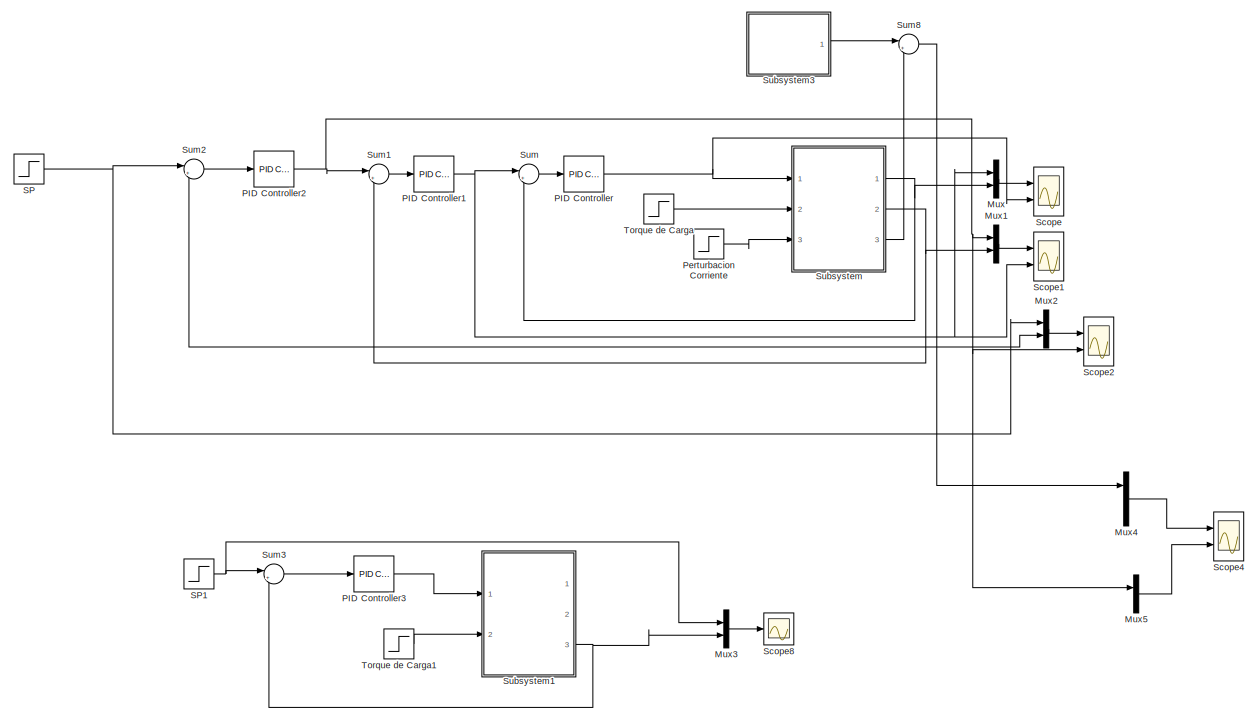
[diagram: root canvas - part 1/2, full width, top band]
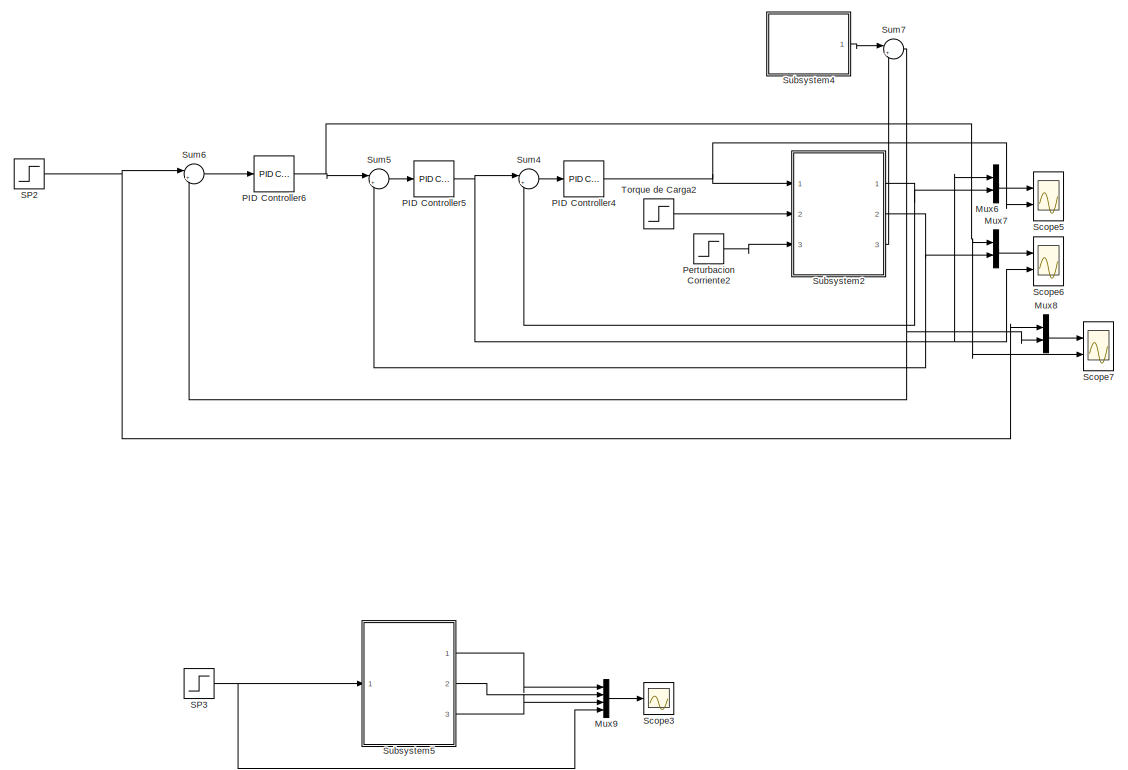
[diagram: root canvas - part 2/2, full width, bottom band]
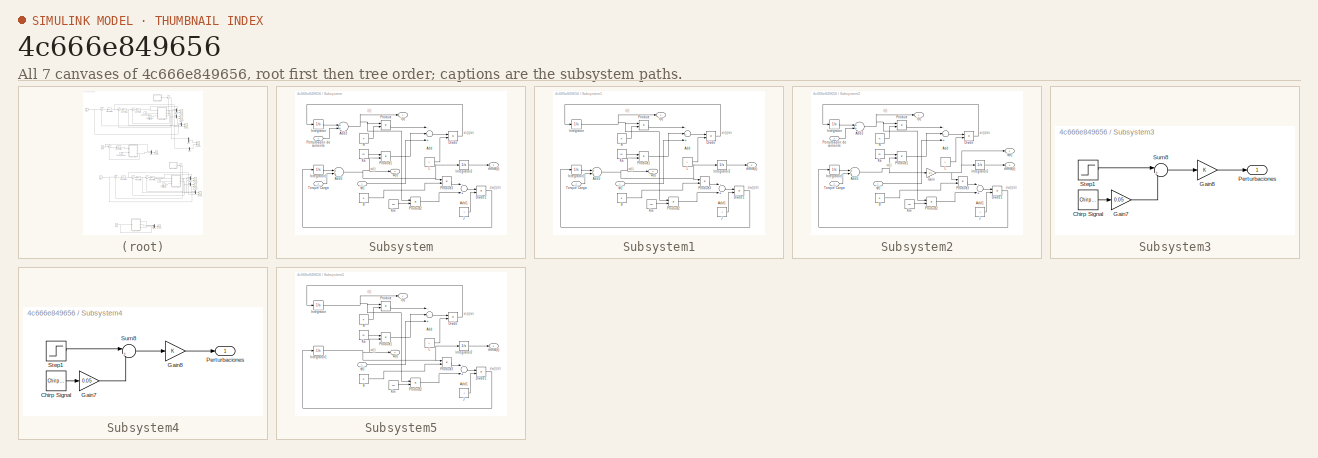
[diagram: thumbnail index - all 7 canvases of the model, root first then tree order]
MODEL slx_4c666e849656
KIND model
CONFIG AbsTol = auto
CONFIG EnableMultiTasking = off
CONFIG FixedStep = auto
CONFIG MaxStep = auto
CONFIG MinStep = auto
CONFIG RelTol = 1e-3
CONFIG SampleTimeConstraint = Unconstrained
CONFIG Solver = VariableStepAuto
CONFIG SolverName = VariableStepAuto
CONFIG StartTime = 0.0
CONFIG StopTime = 3
BLOCK [Mux] Mux
  DisplayOption = bar
  Inputs = 2
  Ports = [2, 1]
BLOCK [Mux] Mux1
  DisplayOption = bar
  Inputs = 2
  Ports = [2, 1]
BLOCK [Mux] Mux2
  DisplayOption = bar
  Inputs = 2
  Ports = [2, 1]
BLOCK [Mux] Mux3
  DisplayOption = bar
  Inputs = 2
  Ports = [2, 1]
BLOCK [Mux] Mux4
  DisplayOption = bar
  Inputs = 3
  Ports = [3, 1]
BLOCK [Mux] Mux5
  DisplayOption = bar
  Inputs = 2
  Ports = [2, 1]
BLOCK [Mux] Mux6
  DisplayOption = bar
  Inputs = 2
  Ports = [2, 1]
BLOCK [Mux] Mux7
  DisplayOption = bar
  Inputs = 2
  Ports = [2, 1]
BLOCK [Mux] Mux8
  DisplayOption = bar
  Inputs = 2
  Ports = [2, 1]
BLOCK [Mux] Mux9
  DisplayOption = bar
  Ports = [4, 1]
BLOCK [Reference] PID Controller  REF=simulink/Continuous/PID Controller
  Ports = [1, 1]
  SourceBlock = simulink/Continuous/PID Controller
  SourceProductBaseCode = SL
  SourceProductName = Simulink
  SourceType = PID 1dof
BLOCK [Reference] PID Controller1  REF=simulink/Continuous/PID Controller
  Ports = [1, 1]
  SourceBlock = simulink/Continuous/PID Controller
  SourceProductBaseCode = SL
  SourceProductName = Simulink
  SourceType = PID 1dof
BLOCK [Reference] PID Controller2  REF=simulink/Continuous/PID Controller
  Ports = [1, 1]
  SourceBlock = simulink/Continuous/PID Controller
  SourceProductBaseCode = SL
  SourceProductName = Simulink
  SourceType = PID 1dof
BLOCK [Reference] PID Controller3  REF=simulink/Continuous/PID Controller
  Ports = [1, 1]
  SourceBlock = simulink/Continuous/PID Controller
  SourceProductBaseCode = SL
  SourceProductName = Simulink
  SourceType = PID 1dof
BLOCK [Reference] PID Controller4  REF=simulink/Continuous/PID Controller
  Ports = [1, 1]
  SourceBlock = simulink/Continuous/PID Controller
  SourceProductBaseCode = SL
  SourceProductName = Simulink
  SourceType = PID 1dof
BLOCK [Reference] PID Controller5  REF=simulink/Continuous/PID Controller
  Ports = [1, 1]
  SourceBlock = simulink/Continuous/PID Controller
  SourceProductBaseCode = SL
  SourceProductName = Simulink
  SourceType = PID 1dof
BLOCK [Reference] PID Controller6  REF=simulink/Continuous/PID Controller
  Ports = [1, 1]
  SourceBlock = simulink/Continuous/PID Controller
  SourceProductBaseCode = SL
  SourceProductName = Simulink
  SourceType = PID 1dof
BLOCK [Step] Perturbacion Corriente
  After = 2
  SampleTime = 0
  Time = 15
BLOCK [Step] Perturbacion Corriente2
  After = 2
  SampleTime = 0
  Time = 15
BLOCK [Step] SP
  After = 0.5
  SampleTime = 0
  Time = 2
BLOCK [Step] SP1
  After = 0.588
  SampleTime = 0
  Time = 0.5
BLOCK [Step] SP2
  After = 0.5
  SampleTime = 0
  Time = 2
BLOCK [Step] SP3
  After = 12
  SampleTime = 0
  Time = 0.5
BLOCK [Scope] Scope
  Floating = off
  NumInputPorts = 2
  Ports = [2]
  ScopeSpecificationString = Simulink.scopes.TimeScopeBlockCfg('CurrentConfiguration', extmgr.ConfigurationSet(extmgr.Configuration('Core','General UI',true),extmgr.Configuration('Core','Source UI',true),extmgr.Configuration('Sources','WiredSimulink',true),extmgr.Configuration('Visuals','Time Domain',true,'SerializedDisplays',{struct('MinYLimReal','-3.12301','MaxYLimReal','14.01425','YLabelReal','','MinYLimMag','0.00000','Max...<+1952ch>
BLOCK [Scope] Scope1
  Floating = off
  NumInputPorts = 2
  Ports = [2]
  ScopeSpecificationString = Simulink.scopes.TimeScopeBlockCfg('CurrentConfiguration', extmgr.ConfigurationSet(extmgr.Configuration('Core','General UI',true),extmgr.Configuration('Core','Source UI',true),extmgr.Configuration('Sources','WiredSimulink',true,'DataLoggingVariableName','ScopeData1'),extmgr.Configuration('Visuals','Time Domain',true,'SerializedDisplays',{struct('MinYLimReal','-0.30348','MaxYLimReal','1.48262','YLab...<+2023ch>
BLOCK [Scope] Scope2
  Floating = off
  NumInputPorts = 2
  Ports = [2]
  ScopeSpecificationString = Simulink.scopes.TimeScopeBlockCfg('CurrentConfiguration', extmgr.ConfigurationSet(extmgr.Configuration('Core','General UI',true),extmgr.Configuration('Core','Source UI',true),extmgr.Configuration('Sources','WiredSimulink',true,'DataLoggingVariableName','ScopeData2'),extmgr.Configuration('Visuals','Time Domain',true,'SerializedDisplays',{struct('MinYLimReal','-0.24995','MaxYLimReal','1.74958','YLab...<+2001ch>
BLOCK [Scope] Scope3
  Floating = off
  NumInputPorts = 1
  Ports = [1]
  ScopeSpecificationString = Simulink.scopes.TimeScopeBlockCfg('CurrentConfiguration', extmgr.ConfigurationSet(extmgr.Configuration('Core','General UI',true,'FigureColor',[1 1 1]),extmgr.Configuration('Core','Source UI',true),extmgr.Configuration('Sources','WiredSimulink',true,'DataLoggingVariableName','ScopeData1'),extmgr.Configuration('Visuals','Time Domain',true,'SerializedDisplays',{struct('MinYLimReal','-1.5','MaxYLimRea...<+2408ch>
BLOCK [Scope] Scope4
  Floating = off
  NumInputPorts = 2
  Ports = [2]
  ScopeSpecificationString = Simulink.scopes.TimeScopeBlockCfg('CurrentConfiguration', extmgr.ConfigurationSet(extmgr.Configuration('Core','General UI',true),extmgr.Configuration('Core','Source UI',true),extmgr.Configuration('Sources','WiredSimulink',true,'DataLoggingVariableName','ScopeData4'),extmgr.Configuration('Visuals','Time Domain',true,'SerializedDisplays',{struct('MinYLimReal','-0.12742','MaxYLimReal','0.64672','YLab...<+2361ch>
BLOCK [Scope] Scope5
  Floating = off
  NumInputPorts = 2
  Ports = [2]
  ScopeSpecificationString = Simulink.scopes.TimeScopeBlockCfg('CurrentConfiguration', extmgr.ConfigurationSet(extmgr.Configuration('Core','General UI',true),extmgr.Configuration('Core','Source UI',true),extmgr.Configuration('Sources','WiredSimulink',true,'DataLoggingVariableName','ScopeData1'),extmgr.Configuration('Visuals','Time Domain',true,'SerializedDisplays',{struct('MinYLimReal','-3.12301','MaxYLimReal','14.01425','YLa...<+1991ch>
BLOCK [Scope] Scope6
  Floating = off
  NumInputPorts = 2
  Ports = [2]
  ScopeSpecificationString = Simulink.scopes.TimeScopeBlockCfg('CurrentConfiguration', extmgr.ConfigurationSet(extmgr.Configuration('Core','General UI',true),extmgr.Configuration('Core','Source UI',true),extmgr.Configuration('Sources','WiredSimulink',true,'DataLoggingVariableName','ScopeData2'),extmgr.Configuration('Visuals','Time Domain',true,'SerializedDisplays',{struct('MinYLimReal','-0.30348','MaxYLimReal','1.48262','YLab...<+2023ch>
BLOCK [Scope] Scope7
  Floating = off
  NumInputPorts = 2
  Ports = [2]
  ScopeSpecificationString = Simulink.scopes.TimeScopeBlockCfg('CurrentConfiguration', extmgr.ConfigurationSet(extmgr.Configuration('Core','General UI',true),extmgr.Configuration('Core','Source UI',true),extmgr.Configuration('Sources','WiredSimulink',true,'DataLoggingVariableName','ScopeData3'),extmgr.Configuration('Visuals','Time Domain',true,'SerializedDisplays',{struct('MinYLimReal','-0.25016','MaxYLimReal','1.74967','YLab...<+2001ch>
BLOCK [Scope] Scope8
  Floating = off
  NumInputPorts = 1
  Ports = [1]
  ScopeSpecificationString = Simulink.scopes.TimeScopeBlockCfg('CurrentConfiguration', extmgr.ConfigurationSet(extmgr.Configuration('Core','General UI',true,'FigureColor',[1 1 1]),extmgr.Configuration('Core','Source UI',true),extmgr.Configuration('Sources','WiredSimulink',true,'DataLoggingVariableName','ScopeData1'),extmgr.Configuration('Visuals','Time Domain',true,'SerializedDisplays',{struct('MinYLimReal','-0.08369','MaxYLi...<+1829ch>
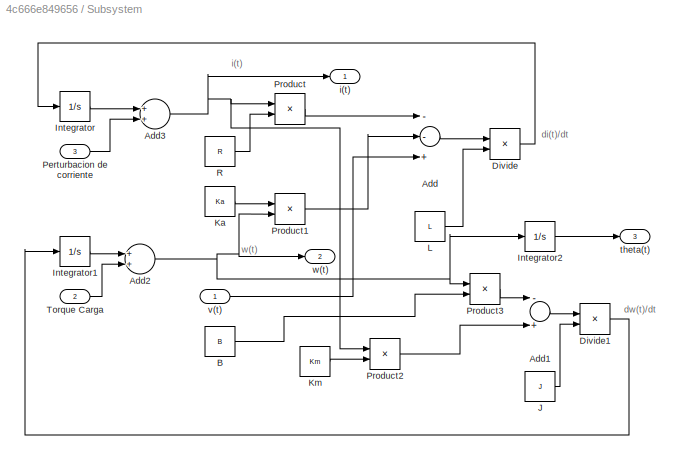
BLOCK [SubSystem] Subsystem
  Ports = [3, 3]
  RequestExecContextInheritance = off
BLOCK [Sum] Subsystem/Add
  InputSameDT = off
  Inputs = --+
  OutDataTypeStr = Inherit: Inherit via internal rule
  Ports = [3, 1]
  SaturateOnIntegerOverflow = off
BLOCK [Sum] Subsystem/Add1
  InputSameDT = off
  Inputs = -+
  OutDataTypeStr = Inherit: Inherit via internal rule
  Ports = [2, 1]
  SaturateOnIntegerOverflow = off
BLOCK [Sum] Subsystem/Add2
  InputSameDT = off
  OutDataTypeStr = Inherit: Inherit via internal rule
  Ports = [2, 1]
  SaturateOnIntegerOverflow = off
BLOCK [Sum] Subsystem/Add3
  InputSameDT = off
  OutDataTypeStr = Inherit: Inherit via internal rule
  Ports = [2, 1]
  SaturateOnIntegerOverflow = off
BLOCK [Constant] Subsystem/B
  Value = B
BLOCK [Product] Subsystem/Divide
  InputSameDT = off
  Inputs = */
  OutDataTypeStr = Inherit: Inherit via internal rule
  Ports = [2, 1]
  RndMeth = Floor
  SaturateOnIntegerOverflow = off
BLOCK [Product] Subsystem/Divide1
  InputSameDT = off
  Inputs = */
  OutDataTypeStr = Inherit: Inherit via internal rule
  Ports = [2, 1]
  RndMeth = Floor
  SaturateOnIntegerOverflow = off
BLOCK [Integrator] Subsystem/Integrator
  Ports = [1, 1]
BLOCK [Integrator] Subsystem/Integrator1
  Ports = [1, 1]
BLOCK [Integrator] Subsystem/Integrator2
  Ports = [1, 1]
BLOCK [Constant] Subsystem/J
  Value = J
BLOCK [Constant] Subsystem/Ka
  Value = Ka
BLOCK [Constant] Subsystem/Km
  Value = Km
BLOCK [Constant] Subsystem/L
  Value = L
BLOCK [Inport] Subsystem/Perturbacion de corriente
  IconDisplay = Port number
  Port = 3
BLOCK [Product] Subsystem/Product
  InputSameDT = off
  OutDataTypeStr = Inherit: Inherit via internal rule
  Ports = [2, 1]
  RndMeth = Floor
  SaturateOnIntegerOverflow = off
BLOCK [Product] Subsystem/Product1
  InputSameDT = off
  OutDataTypeStr = Inherit: Inherit via internal rule
  Ports = [2, 1]
  RndMeth = Floor
  SaturateOnIntegerOverflow = off
BLOCK [Product] Subsystem/Product2
  InputSameDT = off
  OutDataTypeStr = Inherit: Inherit via internal rule
  Ports = [2, 1]
  RndMeth = Floor
  SaturateOnIntegerOverflow = off
BLOCK [Product] Subsystem/Product3
  InputSameDT = off
  OutDataTypeStr = Inherit: Inherit via internal rule
  Ports = [2, 1]
  RndMeth = Floor
  SaturateOnIntegerOverflow = off
BLOCK [Constant] Subsystem/R
  Value = R
BLOCK [Inport] Subsystem/Torque Carga
  IconDisplay = Port number
  Port = 2
BLOCK [Outport] Subsystem/i(t)
  IconDisplay = Port number
BLOCK [Outport] Subsystem/theta(t)
  IconDisplay = Port number
  Port = 3
BLOCK [Inport] Subsystem/v(t)
  IconDisplay = Port number
BLOCK [Outport] Subsystem/w(t)
  IconDisplay = Port number
  Port = 2
BLOCK [SubSystem] Subsystem1
  Ports = [2, 3]
  RequestExecContextInheritance = off
BLOCK [Sum] Subsystem1/Add
  InputSameDT = off
  Inputs = --+
  OutDataTypeStr = Inherit: Inherit via internal rule
  Ports = [3, 1]
  SaturateOnIntegerOverflow = off
BLOCK [Sum] Subsystem1/Add1
  InputSameDT = off
  Inputs = -+
  OutDataTypeStr = Inherit: Inherit via internal rule
  Ports = [2, 1]
  SaturateOnIntegerOverflow = off
BLOCK [Sum] Subsystem1/Add2
  InputSameDT = off
  OutDataTypeStr = Inherit: Inherit via internal rule
  Ports = [2, 1]
  SaturateOnIntegerOverflow = off
BLOCK [Constant] Subsystem1/B
  Value = B
BLOCK [Product] Subsystem1/Divide
  InputSameDT = off
  Inputs = */
  OutDataTypeStr = Inherit: Inherit via internal rule
  Ports = [2, 1]
  RndMeth = Floor
  SaturateOnIntegerOverflow = off
BLOCK [Product] Subsystem1/Divide1
  InputSameDT = off
  Inputs = */
  OutDataTypeStr = Inherit: Inherit via internal rule
  Ports = [2, 1]
  RndMeth = Floor
  SaturateOnIntegerOverflow = off
BLOCK [Integrator] Subsystem1/Integrator
  Ports = [1, 1]
BLOCK [Integrator] Subsystem1/Integrator1
  Ports = [1, 1]
BLOCK [Integrator] Subsystem1/Integrator2
  Ports = [1, 1]
BLOCK [Constant] Subsystem1/J
  Value = J
BLOCK [Constant] Subsystem1/Ka
  Value = Ka
BLOCK [Constant] Subsystem1/Km
  Value = Km
BLOCK [Constant] Subsystem1/L
  Value = L
BLOCK [Product] Subsystem1/Product
  InputSameDT = off
  OutDataTypeStr = Inherit: Inherit via internal rule
  Ports = [2, 1]
  RndMeth = Floor
  SaturateOnIntegerOverflow = off
BLOCK [Product] Subsystem1/Product1
  InputSameDT = off
  OutDataTypeStr = Inherit: Inherit via internal rule
  Ports = [2, 1]
  RndMeth = Floor
  SaturateOnIntegerOverflow = off
BLOCK [Product] Subsystem1/Product2
  InputSameDT = off
  OutDataTypeStr = Inherit: Inherit via internal rule
  Ports = [2, 1]
  RndMeth = Floor
  SaturateOnIntegerOverflow = off
BLOCK [Product] Subsystem1/Product3
  InputSameDT = off
  OutDataTypeStr = Inherit: Inherit via internal rule
  Ports = [2, 1]
  RndMeth = Floor
  SaturateOnIntegerOverflow = off
BLOCK [Constant] Subsystem1/R
  Value = R
BLOCK [Inport] Subsystem1/Torque Carga
  IconDisplay = Port number
  Port = 2
BLOCK [Outport] Subsystem1/i(t)
  IconDisplay = Port number
BLOCK [Outport] Subsystem1/theta(t)
  IconDisplay = Port number
  Port = 3
BLOCK [Inport] Subsystem1/v(t)
  IconDisplay = Port number
BLOCK [Outport] Subsystem1/w(t)
  IconDisplay = Port number
  Port = 2
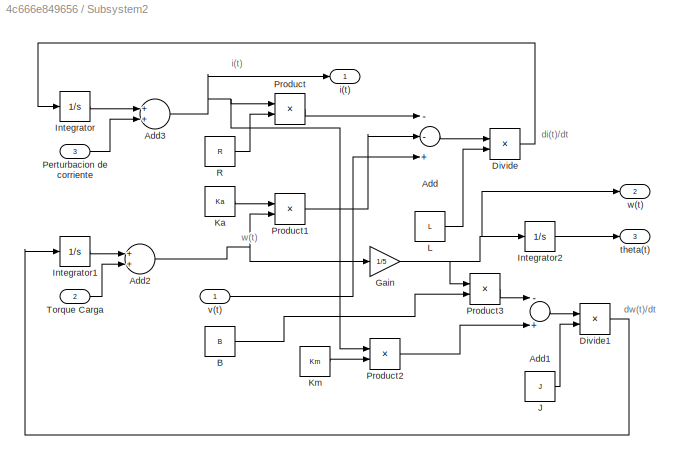
BLOCK [SubSystem] Subsystem2
  Ports = [3, 3]
  RequestExecContextInheritance = off
BLOCK [Sum] Subsystem2/Add
  InputSameDT = off
  Inputs = --+
  OutDataTypeStr = Inherit: Inherit via internal rule
  Ports = [3, 1]
  SaturateOnIntegerOverflow = off
BLOCK [Sum] Subsystem2/Add1
  InputSameDT = off
  Inputs = -+
  OutDataTypeStr = Inherit: Inherit via internal rule
  Ports = [2, 1]
  SaturateOnIntegerOverflow = off
BLOCK [Sum] Subsystem2/Add2
  InputSameDT = off
  OutDataTypeStr = Inherit: Inherit via internal rule
  Ports = [2, 1]
  SaturateOnIntegerOverflow = off
BLOCK [Sum] Subsystem2/Add3
  InputSameDT = off
  OutDataTypeStr = Inherit: Inherit via internal rule
  Ports = [2, 1]
  SaturateOnIntegerOverflow = off
BLOCK [Constant] Subsystem2/B
  Value = B
BLOCK [Product] Subsystem2/Divide
  InputSameDT = off
  Inputs = */
  OutDataTypeStr = Inherit: Inherit via internal rule
  Ports = [2, 1]
  RndMeth = Floor
  SaturateOnIntegerOverflow = off
BLOCK [Product] Subsystem2/Divide1
  InputSameDT = off
  Inputs = */
  OutDataTypeStr = Inherit: Inherit via internal rule
  Ports = [2, 1]
  RndMeth = Floor
  SaturateOnIntegerOverflow = off
BLOCK [Gain] Subsystem2/Gain
  Gain = 1/5
  OutDataTypeStr = Inherit: Inherit via internal rule
  ParamDataTypeStr = Inherit: Inherit via internal rule
  SaturateOnIntegerOverflow = off
BLOCK [Integrator] Subsystem2/Integrator
  Ports = [1, 1]
BLOCK [Integrator] Subsystem2/Integrator1
  Ports = [1, 1]
BLOCK [Integrator] Subsystem2/Integrator2
  Ports = [1, 1]
BLOCK [Constant] Subsystem2/J
  Value = J
BLOCK [Constant] Subsystem2/Ka
  Value = Ka
BLOCK [Constant] Subsystem2/Km
  Value = Km
BLOCK [Constant] Subsystem2/L
  Value = L
BLOCK [Inport] Subsystem2/Perturbacion de corriente
  IconDisplay = Port number
  Port = 3
BLOCK [Product] Subsystem2/Product
  InputSameDT = off
  OutDataTypeStr = Inherit: Inherit via internal rule
  Ports = [2, 1]
  RndMeth = Floor
  SaturateOnIntegerOverflow = off
BLOCK [Product] Subsystem2/Product1
  InputSameDT = off
  OutDataTypeStr = Inherit: Inherit via internal rule
  Ports = [2, 1]
  RndMeth = Floor
  SaturateOnIntegerOverflow = off
BLOCK [Product] Subsystem2/Product2
  InputSameDT = off
  OutDataTypeStr = Inherit: Inherit via internal rule
  Ports = [2, 1]
  RndMeth = Floor
  SaturateOnIntegerOverflow = off
BLOCK [Product] Subsystem2/Product3
  InputSameDT = off
  OutDataTypeStr = Inherit: Inherit via internal rule
  Ports = [2, 1]
  RndMeth = Floor
  SaturateOnIntegerOverflow = off
BLOCK [Constant] Subsystem2/R
  Value = R
BLOCK [Inport] Subsystem2/Torque Carga
  IconDisplay = Port number
  Port = 2
BLOCK [Outport] Subsystem2/i(t)
  IconDisplay = Port number
BLOCK [Outport] Subsystem2/theta(t)
  IconDisplay = Port number
  Port = 3
BLOCK [Inport] Subsystem2/v(t)
  IconDisplay = Port number
BLOCK [Outport] Subsystem2/w(t)
  IconDisplay = Port number
  Port = 2
BLOCK [SubSystem] Subsystem3
  Ports = [0, 1]
  RequestExecContextInheritance = off
BLOCK [Reference] Subsystem3/Chirp Signal  REF=simulink/Sources/Chirp Signal
  Ports = [0, 1]
  SourceBlock = simulink/Sources/Chirp Signal
  SourceProductBaseCode = SL
  SourceProductName = Simulink
  SourceType = chirp
BLOCK [Gain] Subsystem3/Gain7
  Gain = 0.05
  OutDataTypeStr = Inherit: Inherit via internal rule
  ParamDataTypeStr = Inherit: Inherit via internal rule
  SaturateOnIntegerOverflow = off
BLOCK [Gain] Subsystem3/Gain8
  OutDataTypeStr = Inherit: Inherit via internal rule
  ParamDataTypeStr = Inherit: Inherit via internal rule
  SaturateOnIntegerOverflow = off
BLOCK [Outport] Subsystem3/Perturbaciones 
  IconDisplay = Port number
BLOCK [Step] Subsystem3/Step1
  SampleTime = 0
  Time = 40
BLOCK [Sum] Subsystem3/Sum8
  IconShape = round
  InputSameDT = off
  Inputs = |++
  OutDataTypeStr = Inherit: Inherit via internal rule
  Ports = [2, 1]
  SaturateOnIntegerOverflow = off
BLOCK [SubSystem] Subsystem4
  Ports = [0, 1]
  RequestExecContextInheritance = off
BLOCK [Reference] Subsystem4/Chirp Signal  REF=simulink/Sources/Chirp Signal
  Ports = [0, 1]
  SourceBlock = simulink/Sources/Chirp Signal
  SourceProductBaseCode = SL
  SourceProductName = Simulink
  SourceType = chirp
BLOCK [Gain] Subsystem4/Gain7
  Gain = 0.05
  OutDataTypeStr = Inherit: Inherit via internal rule
  ParamDataTypeStr = Inherit: Inherit via internal rule
  SaturateOnIntegerOverflow = off
BLOCK [Gain] Subsystem4/Gain8
  OutDataTypeStr = Inherit: Inherit via internal rule
  ParamDataTypeStr = Inherit: Inherit via internal rule
  SaturateOnIntegerOverflow = off
BLOCK [Outport] Subsystem4/Perturbaciones 
  IconDisplay = Port number
BLOCK [Step] Subsystem4/Step1
  SampleTime = 0
  Time = 40
BLOCK [Sum] Subsystem4/Sum8
  IconShape = round
  InputSameDT = off
  Inputs = |++
  OutDataTypeStr = Inherit: Inherit via internal rule
  Ports = [2, 1]
  SaturateOnIntegerOverflow = off
BLOCK [SubSystem] Subsystem5
  Ports = [1, 3]
  RequestExecContextInheritance = off
BLOCK [Sum] Subsystem5/Add
  InputSameDT = off
  Inputs = --+
  OutDataTypeStr = Inherit: Inherit via internal rule
  Ports = [3, 1]
  SaturateOnIntegerOverflow = off
BLOCK [Sum] Subsystem5/Add1
  InputSameDT = off
  Inputs = -+
  OutDataTypeStr = Inherit: Inherit via internal rule
  Ports = [2, 1]
  SaturateOnIntegerOverflow = off
BLOCK [Constant] Subsystem5/B
  Value = B
BLOCK [Product] Subsystem5/Divide
  InputSameDT = off
  Inputs = */
  OutDataTypeStr = Inherit: Inherit via internal rule
  Ports = [2, 1]
  RndMeth = Floor
  SaturateOnIntegerOverflow = off
BLOCK [Product] Subsystem5/Divide1
  InputSameDT = off
  Inputs = */
  OutDataTypeStr = Inherit: Inherit via internal rule
  Ports = [2, 1]
  RndMeth = Floor
  SaturateOnIntegerOverflow = off
BLOCK [Integrator] Subsystem5/Integrator
  Ports = [1, 1]
BLOCK [Integrator] Subsystem5/Integrator1
  Ports = [1, 1]
BLOCK [Integrator] Subsystem5/Integrator2
  Ports = [1, 1]
BLOCK [Constant] Subsystem5/J
  Value = J
BLOCK [Constant] Subsystem5/Ka
  Value = Ka
BLOCK [Constant] Subsystem5/Km
  Value = Km
BLOCK [Constant] Subsystem5/L
  Value = L
BLOCK [Product] Subsystem5/Product
  InputSameDT = off
  OutDataTypeStr = Inherit: Inherit via internal rule
  Ports = [2, 1]
  RndMeth = Floor
  SaturateOnIntegerOverflow = off
BLOCK [Product] Subsystem5/Product1
  InputSameDT = off
  OutDataTypeStr = Inherit: Inherit via internal rule
  Ports = [2, 1]
  RndMeth = Floor
  SaturateOnIntegerOverflow = off
BLOCK [Product] Subsystem5/Product2
  InputSameDT = off
  OutDataTypeStr = Inherit: Inherit via internal rule
  Ports = [2, 1]
  RndMeth = Floor
  SaturateOnIntegerOverflow = off
BLOCK [Product] Subsystem5/Product3
  InputSameDT = off
  OutDataTypeStr = Inherit: Inherit via internal rule
  Ports = [2, 1]
  RndMeth = Floor
  SaturateOnIntegerOverflow = off
BLOCK [Constant] Subsystem5/R
  Value = R
BLOCK [Outport] Subsystem5/i(t)
  IconDisplay = Port number
BLOCK [Outport] Subsystem5/theta(t)
  IconDisplay = Port number
  Port = 3
BLOCK [Inport] Subsystem5/v(t)
  IconDisplay = Port number
BLOCK [Outport] Subsystem5/w(t)
  IconDisplay = Port number
  Port = 2
BLOCK [Sum] Sum
  IconShape = round
  InputSameDT = off
  Inputs = |+-
  OutDataTypeStr = Inherit: Inherit via internal rule
  Ports = [2, 1]
  SaturateOnIntegerOverflow = off
BLOCK [Sum] Sum1
  IconShape = round
  InputSameDT = off
  Inputs = |+-
  OutDataTypeStr = Inherit: Inherit via internal rule
  Ports = [2, 1]
  SaturateOnIntegerOverflow = off
BLOCK [Sum] Sum2
  IconShape = round
  InputSameDT = off
  Inputs = |+-
  OutDataTypeStr = Inherit: Inherit via internal rule
  Ports = [2, 1]
  SaturateOnIntegerOverflow = off
BLOCK [Sum] Sum3
  IconShape = round
  InputSameDT = off
  Inputs = |+-
  OutDataTypeStr = Inherit: Inherit via internal rule
  Ports = [2, 1]
  SaturateOnIntegerOverflow = off
BLOCK [Sum] Sum4
  IconShape = round
  InputSameDT = off
  Inputs = |+-
  OutDataTypeStr = Inherit: Inherit via internal rule
  Ports = [2, 1]
  SaturateOnIntegerOverflow = off
BLOCK [Sum] Sum5
  IconShape = round
  InputSameDT = off
  Inputs = |+-
  OutDataTypeStr = Inherit: Inherit via internal rule
  Ports = [2, 1]
  SaturateOnIntegerOverflow = off
BLOCK [Sum] Sum6
  IconShape = round
  InputSameDT = off
  Inputs = |+-
  OutDataTypeStr = Inherit: Inherit via internal rule
  Ports = [2, 1]
  SaturateOnIntegerOverflow = off
BLOCK [Sum] Sum7
  IconShape = round
  InputSameDT = off
  Inputs = |++
  OutDataTypeStr = Inherit: Inherit via internal rule
  Ports = [2, 1]
  SaturateOnIntegerOverflow = off
BLOCK [Sum] Sum8
  IconShape = round
  InputSameDT = off
  Inputs = |++
  OutDataTypeStr = Inherit: Inherit via internal rule
  Ports = [2, 1]
  SaturateOnIntegerOverflow = off
BLOCK [Step] Torque de Carga
  After = 0.5*J
  SampleTime = 0
  Time = 10
BLOCK [Step] Torque de Carga1
  After = 0.5
  SampleTime = 0
  Time = 10
BLOCK [Step] Torque de Carga2
  After = 0.9*J
  SampleTime = 0
  Time = 10
ANNOTATION Subsystem: di(t)/dt
ANNOTATION Subsystem: dw(t)/dt
ANNOTATION Subsystem: i(t)
ANNOTATION Subsystem: w(t)
ANNOTATION Subsystem1: di(t)/dt
ANNOTATION Subsystem1: dw(t)/dt
ANNOTATION Subsystem1: i(t)
ANNOTATION Subsystem1: w(t)
ANNOTATION Subsystem2: di(t)/dt
ANNOTATION Subsystem2: dw(t)/dt
ANNOTATION Subsystem2: i(t)
ANNOTATION Subsystem2: w(t)
ANNOTATION Subsystem5: di(t)/dt
ANNOTATION Subsystem5: dw(t)/dt
ANNOTATION Subsystem5: i(t)
ANNOTATION Subsystem5: w(t)
LINE Mux1:1 -> Scope1:1
LINE Mux2:1 -> Scope2:1
LINE Mux3:1 -> Scope8:1
LINE Mux4:1 -> Scope4:1
LINE Mux5:1 -> Scope4:2
LINE Mux6:1 -> Scope5:1
LINE Mux7:1 -> Scope6:1
LINE Mux8:1 -> Scope7:1
LINE Mux9:1 -> Scope3:1
LINE Mux:1 -> Scope:1
NET PID Controller1:1 -> Mux:1, Scope1:2, Sum:1
NET PID Controller2:1 -> Mux1:1, Mux5:1, Scope2:2, Sum1:1
LINE PID Controller3:1 -> Subsystem1:1
NET PID Controller4:1 -> Scope5:2, Subsystem2:1
NET PID Controller5:1 -> Mux6:1, Scope6:2, Sum4:1
NET PID Controller6:1 -> Mux7:1, Scope7:2, Sum5:1
NET PID Controller:1 -> Scope:2, Subsystem:1
LINE Perturbacion Corriente2:1 -> Subsystem2:3
LINE Perturbacion Corriente:1 -> Subsystem:3
NET SP1:1 -> Mux3:1, Sum3:1
NET SP2:1 -> Mux8:1, Sum6:1
NET SP3:1 -> Mux9:4, Subsystem5:1
NET SP:1 -> Mux2:1, Sum2:1
LINE Subsystem/Add1:1 -> Subsystem/Divide1:1
NET Subsystem/Add2:1 -> Subsystem/Integrator2:1, Subsystem/Product1:2, Subsystem/Product3:1, Subsystem/w(t):1
NET Subsystem/Add3:1 -> Subsystem/Product2:1, Subsystem/Product:1, Subsystem/i(t):1
LINE Subsystem/Add:1 -> Subsystem/Divide:1
LINE Subsystem/B:1 -> Subsystem/Product3:2
LINE Subsystem/Divide1:1 -> Subsystem/Integrator1:1
LINE Subsystem/Divide:1 -> Subsystem/Integrator:1
LINE Subsystem/Integrator1:1 -> Subsystem/Add2:1
LINE Subsystem/Integrator2:1 -> Subsystem/theta(t):1
LINE Subsystem/Integrator:1 -> Subsystem/Add3:1
LINE Subsystem/J:1 -> Subsystem/Divide1:2
LINE Subsystem/Ka:1 -> Subsystem/Product1:1
LINE Subsystem/Km:1 -> Subsystem/Product2:2
LINE Subsystem/L:1 -> Subsystem/Divide:2
LINE Subsystem/Perturbacion de corriente:1 -> Subsystem/Add3:2
LINE Subsystem/Product1:1 -> Subsystem/Add:2
LINE Subsystem/Product2:1 -> Subsystem/Add1:2
LINE Subsystem/Product3:1 -> Subsystem/Add1:1
LINE Subsystem/Product:1 -> Subsystem/Add:1
LINE Subsystem/R:1 -> Subsystem/Product:2
LINE Subsystem/Torque Carga:1 -> Subsystem/Add2:2
LINE Subsystem/v(t):1 -> Subsystem/Add:3
LINE Subsystem1/Add1:1 -> Subsystem1/Divide1:1
NET Subsystem1/Add2:1 -> Subsystem1/Integrator2:1, Subsystem1/Product1:2, Subsystem1/Product3:1, Subsystem1/w(t):1
LINE Subsystem1/Add:1 -> Subsystem1/Divide:1
LINE Subsystem1/B:1 -> Subsystem1/Product3:2
LINE Subsystem1/Divide1:1 -> Subsystem1/Integrator1:1
LINE Subsystem1/Divide:1 -> Subsystem1/Integrator:1
LINE Subsystem1/Integrator1:1 -> Subsystem1/Add2:1
LINE Subsystem1/Integrator2:1 -> Subsystem1/theta(t):1
NET Subsystem1/Integrator:1 -> Subsystem1/Product2:1, Subsystem1/Product:1, Subsystem1/i(t):1
LINE Subsystem1/J:1 -> Subsystem1/Divide1:2
LINE Subsystem1/Ka:1 -> Subsystem1/Product1:1
LINE Subsystem1/Km:1 -> Subsystem1/Product2:2
LINE Subsystem1/L:1 -> Subsystem1/Divide:2
LINE Subsystem1/Product1:1 -> Subsystem1/Add:2
LINE Subsystem1/Product2:1 -> Subsystem1/Add1:2
LINE Subsystem1/Product3:1 -> Subsystem1/Add1:1
LINE Subsystem1/Product:1 -> Subsystem1/Add:1
LINE Subsystem1/R:1 -> Subsystem1/Product:2
LINE Subsystem1/Torque Carga:1 -> Subsystem1/Add2:2
LINE Subsystem1/v(t):1 -> Subsystem1/Add:3
NET Subsystem1:3 -> Mux3:2, Sum3:2
LINE Subsystem2/Add1:1 -> Subsystem2/Divide1:1
NET Subsystem2/Add2:1 -> Subsystem2/Gain:1, Subsystem2/Product1:2
NET Subsystem2/Add3:1 -> Subsystem2/Product2:1, Subsystem2/Product:1, Subsystem2/i(t):1
LINE Subsystem2/Add:1 -> Subsystem2/Divide:1
LINE Subsystem2/B:1 -> Subsystem2/Product3:2
LINE Subsystem2/Divide1:1 -> Subsystem2/Integrator1:1
LINE Subsystem2/Divide:1 -> Subsystem2/Integrator:1
NET Subsystem2/Gain:1 -> Subsystem2/Integrator2:1, Subsystem2/Product3:1, Subsystem2/w(t):1
LINE Subsystem2/Integrator1:1 -> Subsystem2/Add2:1
LINE Subsystem2/Integrator2:1 -> Subsystem2/theta(t):1
LINE Subsystem2/Integrator:1 -> Subsystem2/Add3:1
LINE Subsystem2/J:1 -> Subsystem2/Divide1:2
LINE Subsystem2/Ka:1 -> Subsystem2/Product1:1
LINE Subsystem2/Km:1 -> Subsystem2/Product2:2
LINE Subsystem2/L:1 -> Subsystem2/Divide:2
LINE Subsystem2/Perturbacion de corriente:1 -> Subsystem2/Add3:2
LINE Subsystem2/Product1:1 -> Subsystem2/Add:2
LINE Subsystem2/Product2:1 -> Subsystem2/Add1:2
LINE Subsystem2/Product3:1 -> Subsystem2/Add1:1
LINE Subsystem2/Product:1 -> Subsystem2/Add:1
LINE Subsystem2/R:1 -> Subsystem2/Product:2
LINE Subsystem2/Torque Carga:1 -> Subsystem2/Add2:2
LINE Subsystem2/v(t):1 -> Subsystem2/Add:3
NET Subsystem2:1 -> Mux6:2, Sum4:2
NET Subsystem2:2 -> Mux7:2, Sum5:2
LINE Subsystem2:3 -> Sum7:2
LINE Subsystem3/Chirp Signal:1 -> Subsystem3/Gain7:1
LINE Subsystem3/Gain7:1 -> Subsystem3/Sum8:2
LINE Subsystem3/Gain8:1 -> Subsystem3/Perturbaciones :1
LINE Subsystem3/Step1:1 -> Subsystem3/Sum8:1
LINE Subsystem3/Sum8:1 -> Subsystem3/Gain8:1
LINE Subsystem3:1 -> Sum8:1
LINE Subsystem4/Chirp Signal:1 -> Subsystem4/Gain7:1
LINE Subsystem4/Gain7:1 -> Subsystem4/Sum8:2
LINE Subsystem4/Gain8:1 -> Subsystem4/Perturbaciones :1
LINE Subsystem4/Step1:1 -> Subsystem4/Sum8:1
LINE Subsystem4/Sum8:1 -> Subsystem4/Gain8:1
LINE Subsystem4:1 -> Sum7:1
LINE Subsystem5/Add1:1 -> Subsystem5/Divide1:1
LINE Subsystem5/Add:1 -> Subsystem5/Divide:1
LINE Subsystem5/B:1 -> Subsystem5/Product3:2
LINE Subsystem5/Divide1:1 -> Subsystem5/Integrator1:1
LINE Subsystem5/Divide:1 -> Subsystem5/Integrator:1
NET Subsystem5/Integrator1:1 -> Subsystem5/Integrator2:1, Subsystem5/Product1:2, Subsystem5/Product3:1, Subsystem5/w(t):1
LINE Subsystem5/Integrator2:1 -> Subsystem5/theta(t):1
NET Subsystem5/Integrator:1 -> Subsystem5/Product2:1, Subsystem5/Product:1, Subsystem5/i(t):1
LINE Subsystem5/J:1 -> Subsystem5/Divide1:2
LINE Subsystem5/Ka:1 -> Subsystem5/Product1:1
LINE Subsystem5/Km:1 -> Subsystem5/Product2:2
LINE Subsystem5/L:1 -> Subsystem5/Divide:2
LINE Subsystem5/Product1:1 -> Subsystem5/Add:2
LINE Subsystem5/Product2:1 -> Subsystem5/Add1:2
LINE Subsystem5/Product3:1 -> Subsystem5/Add1:1
LINE Subsystem5/Product:1 -> Subsystem5/Add:1
LINE Subsystem5/R:1 -> Subsystem5/Product:2
LINE Subsystem5/v(t):1 -> Subsystem5/Add:3
LINE Subsystem5:1 -> Mux9:1
LINE Subsystem5:2 -> Mux9:2
LINE Subsystem5:3 -> Mux9:3
NET Subsystem:1 -> Mux:2, Sum:2
NET Subsystem:2 -> Mux1:2, Sum1:2
LINE Subsystem:3 -> Sum8:2
LINE Sum1:1 -> PID Controller1:1
LINE Sum2:1 -> PID Controller2:1
LINE Sum3:1 -> PID Controller3:1
LINE Sum4:1 -> PID Controller4:1
LINE Sum5:1 -> PID Controller5:1
LINE Sum6:1 -> PID Controller6:1
NET Sum7:1 -> Mux8:2, Sum6:2
NET Sum8:1 -> Mux2:2, Mux4:1, Sum2:2
LINE Sum:1 -> PID Controller:1
LINE Torque de Carga1:1 -> Subsystem1:2
LINE Torque de Carga2:1 -> Subsystem2:2
LINE Torque de Carga:1 -> Subsystem:2
note: NET lines group one-source signal fan-out (src -> all destinations, sorted); 1:1 wires keep LINE
